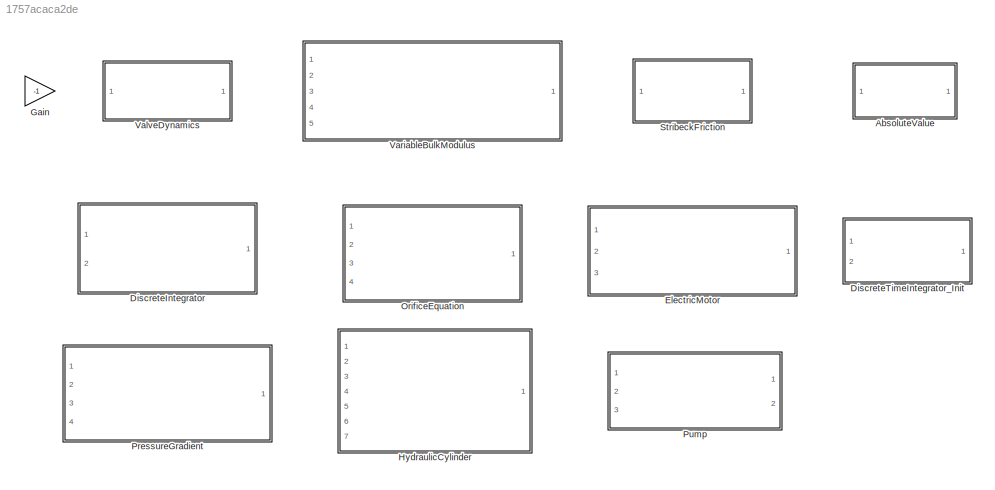
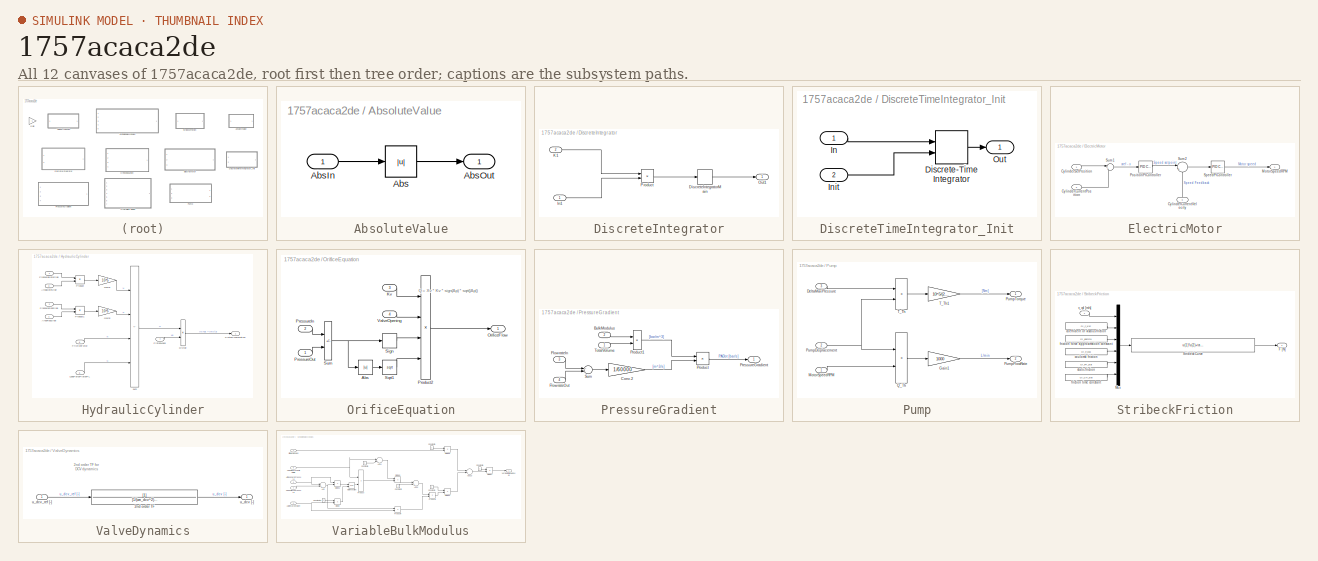
[diagram: thumbnail index - all 12 canvases of the model, root first then tree order]
MODEL slx_1757acaca2de
KIND model
CONFIG AbsTol = auto
CONFIG EnableMultiTasking = off
CONFIG FixedStep = 0.001
CONFIG MaxStep = auto
CONFIG MinStep = auto
CONFIG RelTol = 1e-3
CONFIG SampleTimeConstraint = Unconstrained
CONFIG SolverName = FixedStepDiscrete
CONFIG StartTime = 0.0
CONFIG StopTime = 10.0
BLOCK [SubSystem] AbsoluteValue
  Ports = [1, 1]
  RequestExecContextInheritance = off
  TreatAsAtomicUnit = on
BLOCK [Abs] AbsoluteValue/Abs
  SaturateOnIntegerOverflow = off
BLOCK [Inport] AbsoluteValue/AbsIn
BLOCK [Outport] AbsoluteValue/AbsOut
BLOCK [SubSystem] DiscreteIntegrator
  Ports = [2, 1]
  RequestExecContextInheritance = off
  TreatAsAtomicUnit = on
BLOCK [DiscreteIntegrator] DiscreteIntegrator/DiscreteIntegratorMain
  ICPrevOutput = DiscIntNeverNeededParam
  ICPrevScaledInput = DiscIntNeverNeededParam
  InitialConditionSetting = Auto
  Ports = [1, 1]
  SampleTime = -1
BLOCK [Inport] DiscreteIntegrator/In1
  OutDataTypeStr = single
BLOCK [Inport] DiscreteIntegrator/K1
  OutDataTypeStr = single
  Port = 2
BLOCK [Outport] DiscreteIntegrator/Out1
  OutDataTypeStr = single
BLOCK [Product] DiscreteIntegrator/Product
  Ports = [2, 1]
BLOCK [SubSystem] DiscreteTimeIntegrator_Init
  Ports = [2, 1]
  RequestExecContextInheritance = off
  TreatAsAtomicUnit = on
BLOCK [DiscreteIntegrator] DiscreteTimeIntegrator_Init/Discrete-Time Integrator
  ICPrevOutput = DiscIntNeverNeededParam
  ICPrevScaledInput = DiscIntNeverNeededParam
  InitialConditionSetting = Auto
  InitialConditionSource = external
  LimitOutput = on
  LowerSaturationLimit = -1337
  Ports = [2, 1]
  SampleTime = -1
  UpperSaturationLimit = 1337
BLOCK [Inport] DiscreteTimeIntegrator_Init/In
BLOCK [Inport] DiscreteTimeIntegrator_Init/Init
  Port = 2
BLOCK [Outport] DiscreteTimeIntegrator_Init/Out
BLOCK [SubSystem] ElectricMotor
  Ports = [3, 1]
  RequestExecContextInheritance = off
  TreatAsAtomicUnit = on
BLOCK [Inport] ElectricMotor/CylinderCurrentPosition
  Port = 2
BLOCK [Inport] ElectricMotor/CylinderCurrentVelocity
  NameLocation = right
  Port = 3
BLOCK [Inport] ElectricMotor/CylinderSetPosition
BLOCK [Outport] ElectricMotor/MotorSpeedRPM
BLOCK [Reference] ElectricMotor/PositionPIController  REF=slpidlib/PID Controller
  Ports = [1, 1]
  SourceBlock = slpidlib/PID Controller
  SourceProductBaseCode = SL
  SourceType = PID 1dof
BLOCK [Reference] ElectricMotor/SpeedPIController  REF=slpidlib/PID Controller
  Ports = [1, 1]
  SourceBlock = slpidlib/PID Controller
  SourceProductBaseCode = SL
  SourceType = PID 1dof
BLOCK [Sum] ElectricMotor/Sum1
  Inputs = |+-
  Ports = [2, 1]
BLOCK [Sum] ElectricMotor/Sum2
  Inputs = |+-
  Ports = [2, 1]
BLOCK [Gain] Gain
  Commented = on
  Gain = -1
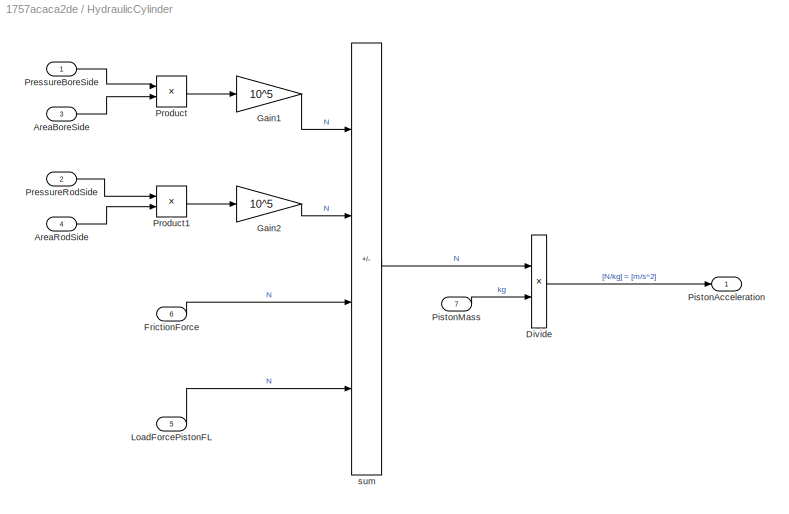
BLOCK [SubSystem] HydraulicCylinder
  Ports = [7, 1]
  RequestExecContextInheritance = off
  TreatAsAtomicUnit = on
BLOCK [Inport] HydraulicCylinder/AreaBoreSide
  Port = 3
BLOCK [Inport] HydraulicCylinder/AreaRodSide
  Port = 4
BLOCK [Product] HydraulicCylinder/Divide 
  Inputs = */
  Ports = [2, 1]
BLOCK [Inport] HydraulicCylinder/FrictionForce
  Port = 6
BLOCK [Gain] HydraulicCylinder/Gain1
  Gain = 10^5
BLOCK [Gain] HydraulicCylinder/Gain2
  Gain = 10^5
BLOCK [Inport] HydraulicCylinder/LoadForcePistonFL
  Port = 5
BLOCK [Outport] HydraulicCylinder/PistonAcceleration
BLOCK [Inport] HydraulicCylinder/PistonMass
  Port = 7
BLOCK [Inport] HydraulicCylinder/PressureBoreSide
BLOCK [Inport] HydraulicCylinder/PressureRodSide
  Port = 2
BLOCK [Product] HydraulicCylinder/Product
  Ports = [2, 1]
BLOCK [Product] HydraulicCylinder/Product1
  Ports = [2, 1]
BLOCK [Sum] HydraulicCylinder/sum
  IconShape = rectangular
  Inputs = +---
  Ports = [4, 1]
BLOCK [SubSystem] OrificeEquation
  Ports = [4, 1]
  RequestExecContextInheritance = off
  TreatAsAtomicUnit = on
BLOCK [Abs] OrificeEquation/Abs
  SaturateOnIntegerOverflow = off
BLOCK [Inport] OrificeEquation/Kv
  Port = 3
BLOCK [Outport] OrificeEquation/OrificeFlow
BLOCK [Inport] OrificeEquation/PressureIn
  Port = 2
BLOCK [Inport] OrificeEquation/PressureOut
BLOCK [Product] OrificeEquation/Product2
  Inputs = 4
  Ports = [4, 1]
BLOCK [Signum] OrificeEquation/Sign
BLOCK [Sqrt] OrificeEquation/Sqrt1
BLOCK [Sum] OrificeEquation/Sum
  IconShape = rectangular
  Inputs = +|-
  Ports = [2, 1]
BLOCK [Inport] OrificeEquation/ValveOpening
  Port = 4
BLOCK [SubSystem] PressureGradient
  Ports = [4, 1]
  RequestExecContextInheritance = off
  TreatAsAtomicUnit = on
BLOCK [Inport] PressureGradient/BulkModulus
  NameLocation = left
  Port = 2
BLOCK [Gain] PressureGradient/Conv.2
  Gain = 1/60000
  NameLocation = top
BLOCK [Inport] PressureGradient/FlowrateIn
  NameLocation = left
  Port = 3
BLOCK [Inport] PressureGradient/FlowrateOut
  NameLocation = left
  Port = 4
BLOCK [Outport] PressureGradient/PressureGradient
BLOCK [Product] PressureGradient/Product
  Ports = [2, 1]
BLOCK [Product] PressureGradient/Product1
  Inputs = */
  Ports = [2, 1]
BLOCK [Sum] PressureGradient/Sum
  Inputs = +-
  Ports = [2, 1]
BLOCK [Inport] PressureGradient/TotalVolume
  NameLocation = left
BLOCK [SubSystem] Pump
  Ports = [3, 2]
  RequestExecContextInheritance = off
  TreatAsAtomicUnit = on
BLOCK [Inport] Pump/DeltaMaxPressure
  Port = 3
BLOCK [Gain] Pump/Gain1
  Gain = 1000
BLOCK [Inport] Pump/MotorSpeedRPM
BLOCK [Inport] Pump/PumpDisplacement
  Port = 2
BLOCK [Outport] Pump/PumpFlowRate
  Port = 2
  VectorParamsAs1DForOutWhenUnconnected = off
BLOCK [Outport] Pump/PumpTorque
  VectorParamsAs1DForOutWhenUnconnected = off
BLOCK [Product] Pump/Q_Th
  Ports = [2, 1]
  RndMeth = Zero
BLOCK [Product] Pump/T_Th
  Ports = [2, 1]
  RndMeth = Zero
BLOCK [Gain] Pump/T_Th1
  Gain = 10^5/(2*pi)
BLOCK [SubSystem] StribeckFriction
  Ports = [1, 1]
  RequestExecContextInheritance = off
  TreatAsAtomicUnit = on
BLOCK [Outport] StribeckFriction/F [N]
  VectorParamsAs1DForOutWhenUnconnected = off
BLOCK [Mux] StribeckFriction/Mux
  DisplayOption = bar
  Inputs = 6
  Ports = [6, 1]
BLOCK [Fcn] StribeckFriction/Stribeck Curve
  Expr = u(1)*u(2)+tanh(u(1)*u(3))*(u(4)+u(5)*exp(-(u(1)*tanh(u(1)*u(3)))/u(6)))
BLOCK [Constant] StribeckFriction/coefficient of viscous friction 
  Value = cyl_c_visc
BLOCK [Constant] StribeckFriction/coulomb friction
  Value = cyl_F_coul
BLOCK [Constant] StribeckFriction/friction force approximation constant
  Value = cyl_gamma
BLOCK [Constant] StribeckFriction/friction time constant
  Value = cyl_CH_stat
BLOCK [Constant] StribeckFriction/static friction
  Value = cyl_FH_stat
BLOCK [Inport] StribeckFriction/v_cyl [m//s]
BLOCK [SubSystem] ValveDynamics
  Ports = [1, 1]
  RequestExecContextInheritance = off
  TreatAsAtomicUnit = on
BLOCK [TransferFcn] ValveDynamics/2nd order TF
  Denominator = [1/(wn_dcv^2) 2*dr_dcv/wn_dcv  1]
BLOCK [Outport] ValveDynamics/u_dcv [-]
  VectorParamsAs1DForOutWhenUnconnected = off
BLOCK [Inport] ValveDynamics/u_dcv_ref [-]
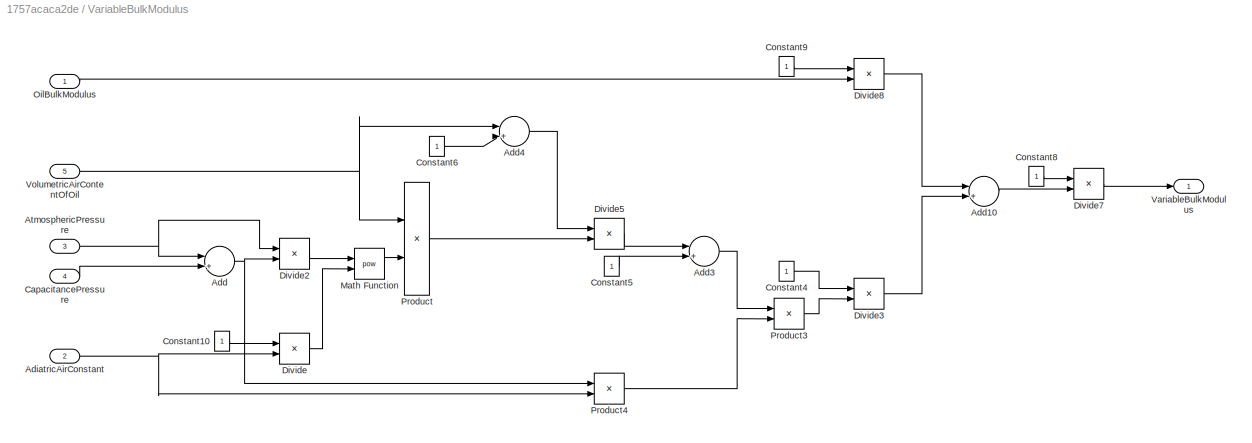
BLOCK [SubSystem] VariableBulkModulus
  Ports = [5, 1]
  RequestExecContextInheritance = off
  TreatAsAtomicUnit = on
BLOCK [Sum] VariableBulkModulus/Add
  Inputs = |++|
  Ports = [2, 1]
BLOCK [Sum] VariableBulkModulus/Add10
  Inputs = |+-|
  Ports = [2, 1]
BLOCK [Sum] VariableBulkModulus/Add3
  Inputs = |+-|
  Ports = [2, 1]
BLOCK [Sum] VariableBulkModulus/Add4
  Inputs = |+-|
  Ports = [2, 1]
BLOCK [Inport] VariableBulkModulus/AdiatricAirConstant
  NameLocation = left
  Port = 2
BLOCK [Inport] VariableBulkModulus/AtmosphericPressure
  NameLocation = left
  Port = 3
BLOCK [Inport] VariableBulkModulus/CapacitancePressure
  NameLocation = left
  Port = 4
BLOCK [Constant] VariableBulkModulus/Constant10
BLOCK [Constant] VariableBulkModulus/Constant4
BLOCK [Constant] VariableBulkModulus/Constant5
BLOCK [Constant] VariableBulkModulus/Constant6
BLOCK [Constant] VariableBulkModulus/Constant8
BLOCK [Constant] VariableBulkModulus/Constant9
BLOCK [Product] VariableBulkModulus/Divide
  Inputs = */
  Ports = [2, 1]
BLOCK [Product] VariableBulkModulus/Divide2
  Inputs = */
  Ports = [2, 1]
BLOCK [Product] VariableBulkModulus/Divide3
  Inputs = */
  Ports = [2, 1]
BLOCK [Product] VariableBulkModulus/Divide5
  Inputs = */
  Ports = [2, 1]
BLOCK [Product] VariableBulkModulus/Divide7
  Inputs = */
  Ports = [2, 1]
BLOCK [Product] VariableBulkModulus/Divide8
  Inputs = */
  Ports = [2, 1]
BLOCK [Math] VariableBulkModulus/Math Function
  Operator = pow
  Ports = [2, 1]
BLOCK [Inport] VariableBulkModulus/OilBulkModulus
  NameLocation = left
BLOCK [Product] VariableBulkModulus/Product
  Ports = [2, 1]
BLOCK [Product] VariableBulkModulus/Product3
  Ports = [2, 1]
BLOCK [Product] VariableBulkModulus/Product4
  Ports = [2, 1]
BLOCK [Outport] VariableBulkModulus/VariableBulkModulus
BLOCK [Inport] VariableBulkModulus/VolumetricAirContentOfOil
  NameLocation = left
  Port = 5
ANNOTATION OrificeEquation: Q = Xv * Kv * sign(Δp) * sqrt(|Δp|)
ANNOTATION ValveDynamics: 2nd order TF for DCV dynamics
LINE AbsoluteValue/Abs:1 -> AbsoluteValue/AbsOut:1
LINE AbsoluteValue/AbsIn:1 -> AbsoluteValue/Abs:1
LINE DiscreteIntegrator/DiscreteIntegratorMain:1 -> DiscreteIntegrator/Out1:1
LINE DiscreteIntegrator/In1:1 -> DiscreteIntegrator/Product:2
LINE DiscreteIntegrator/K1:1 -> DiscreteIntegrator/Product:1
LINE DiscreteIntegrator/Product:1 -> DiscreteIntegrator/DiscreteIntegratorMain:1
LINE DiscreteTimeIntegrator_Init/Discrete-Time Integrator:1 -> DiscreteTimeIntegrator_Init/Out:1
LINE DiscreteTimeIntegrator_Init/In:1 -> DiscreteTimeIntegrator_Init/Discrete-Time Integrator:1
LINE DiscreteTimeIntegrator_Init/Init:1 -> DiscreteTimeIntegrator_Init/Discrete-Time Integrator:2
LINE ElectricMotor/CylinderCurrentPosition:1 -> ElectricMotor/Sum1:2
LINE ElectricMotor/CylinderCurrentVelocity:1 -> ElectricMotor/Sum2:2
LINE ElectricMotor/CylinderSetPosition:1 -> ElectricMotor/Sum1:1
LINE ElectricMotor/PositionPIController:1 -> ElectricMotor/Sum2:1
LINE ElectricMotor/SpeedPIController:1 -> ElectricMotor/MotorSpeedRPM:1
LINE ElectricMotor/Sum1:1 -> ElectricMotor/PositionPIController:1
LINE ElectricMotor/Sum2:1 -> ElectricMotor/SpeedPIController:1
LINE HydraulicCylinder/AreaBoreSide:1 -> HydraulicCylinder/Product:2
LINE HydraulicCylinder/AreaRodSide:1 -> HydraulicCylinder/Product1:2
LINE HydraulicCylinder/Divide :1 -> HydraulicCylinder/PistonAcceleration:1
LINE HydraulicCylinder/FrictionForce:1 -> HydraulicCylinder/sum:3
LINE HydraulicCylinder/Gain1:1 -> HydraulicCylinder/sum:1
LINE HydraulicCylinder/Gain2:1 -> HydraulicCylinder/sum:2
LINE HydraulicCylinder/LoadForcePistonFL:1 -> HydraulicCylinder/sum:4
LINE HydraulicCylinder/PistonMass:1 -> HydraulicCylinder/Divide :2
LINE HydraulicCylinder/PressureBoreSide:1 -> HydraulicCylinder/Product:1
LINE HydraulicCylinder/PressureRodSide:1 -> HydraulicCylinder/Product1:1
LINE HydraulicCylinder/Product1:1 -> HydraulicCylinder/Gain2:1
LINE HydraulicCylinder/Product:1 -> HydraulicCylinder/Gain1:1
LINE HydraulicCylinder/sum:1 -> HydraulicCylinder/Divide :1
LINE OrificeEquation/Abs:1 -> OrificeEquation/Sqrt1:1
LINE OrificeEquation/Kv:1 -> OrificeEquation/Product2:1
LINE OrificeEquation/PressureIn:1 -> OrificeEquation/Sum:1
LINE OrificeEquation/PressureOut:1 -> OrificeEquation/Sum:2
LINE OrificeEquation/Product2:1 -> OrificeEquation/OrificeFlow:1
LINE OrificeEquation/Sign:1 -> OrificeEquation/Product2:3
LINE OrificeEquation/Sqrt1:1 -> OrificeEquation/Product2:4
NET OrificeEquation/Sum:1 -> OrificeEquation/Abs:1, OrificeEquation/Sign:1
LINE OrificeEquation/ValveOpening:1 -> OrificeEquation/Product2:2
LINE PressureGradient/BulkModulus:1 -> PressureGradient/Product1:1
LINE PressureGradient/Conv.2:1 -> PressureGradient/Product:2
LINE PressureGradient/FlowrateIn:1 -> PressureGradient/Sum:1
LINE PressureGradient/FlowrateOut:1 -> PressureGradient/Sum:2
LINE PressureGradient/Product1:1 -> PressureGradient/Product:1
LINE PressureGradient/Product:1 -> PressureGradient/PressureGradient:1
LINE PressureGradient/Sum:1 -> PressureGradient/Conv.2:1
LINE PressureGradient/TotalVolume:1 -> PressureGradient/Product1:2
LINE Pump/DeltaMaxPressure:1 -> Pump/T_Th:1
LINE Pump/Gain1:1 -> Pump/PumpFlowRate:1
LINE Pump/MotorSpeedRPM:1 -> Pump/Q_Th:2
NET Pump/PumpDisplacement:1 -> Pump/Q_Th:1, Pump/T_Th:2
LINE Pump/Q_Th:1 -> Pump/Gain1:1
LINE Pump/T_Th1:1 -> Pump/PumpTorque:1
LINE Pump/T_Th:1 -> Pump/T_Th1:1
LINE StribeckFriction/Mux:1 -> StribeckFriction/Stribeck Curve:1
LINE StribeckFriction/Stribeck Curve:1 -> StribeckFriction/F [N]:1
LINE StribeckFriction/coefficient of viscous friction :1 -> StribeckFriction/Mux:2
LINE StribeckFriction/coulomb friction:1 -> StribeckFriction/Mux:4
LINE StribeckFriction/friction force approximation constant:1 -> StribeckFriction/Mux:3
LINE StribeckFriction/friction time constant:1 -> StribeckFriction/Mux:6
LINE StribeckFriction/static friction:1 -> StribeckFriction/Mux:5
LINE StribeckFriction/v_cyl [m//s]:1 -> StribeckFriction/Mux:1
LINE ValveDynamics/2nd order TF:1 -> ValveDynamics/u_dcv [-]:1
LINE ValveDynamics/u_dcv_ref [-]:1 -> ValveDynamics/2nd order TF:1
LINE VariableBulkModulus/Add10:1 -> VariableBulkModulus/Divide7:2
LINE VariableBulkModulus/Add3:1 -> VariableBulkModulus/Product3:1
LINE VariableBulkModulus/Add4:1 -> VariableBulkModulus/Divide5:1
NET VariableBulkModulus/Add:1 -> VariableBulkModulus/Divide2:2, VariableBulkModulus/Product4:1
NET VariableBulkModulus/AdiatricAirConstant:1 -> VariableBulkModulus/Divide:2, VariableBulkModulus/Product4:2
NET VariableBulkModulus/AtmosphericPressure:1 -> VariableBulkModulus/Add:1, VariableBulkModulus/Divide2:1
LINE VariableBulkModulus/CapacitancePressure:1 -> VariableBulkModulus/Add:2
LINE VariableBulkModulus/Constant10:1 -> VariableBulkModulus/Divide:1
LINE VariableBulkModulus/Constant4:1 -> VariableBulkModulus/Divide3:1
LINE VariableBulkModulus/Constant5:1 -> VariableBulkModulus/Add3:2
LINE VariableBulkModulus/Constant6:1 -> VariableBulkModulus/Add4:2
LINE VariableBulkModulus/Constant8:1 -> VariableBulkModulus/Divide7:1
LINE VariableBulkModulus/Constant9:1 -> VariableBulkModulus/Divide8:1
LINE VariableBulkModulus/Divide2:1 -> VariableBulkModulus/Math Function:1
LINE VariableBulkModulus/Divide3:1 -> VariableBulkModulus/Add10:2
LINE VariableBulkModulus/Divide5:1 -> VariableBulkModulus/Add3:1
LINE VariableBulkModulus/Divide7:1 -> VariableBulkModulus/VariableBulkModulus:1
LINE VariableBulkModulus/Divide8:1 -> VariableBulkModulus/Add10:1
LINE VariableBulkModulus/Divide:1 -> VariableBulkModulus/Math Function:2
LINE VariableBulkModulus/Math Function:1 -> VariableBulkModulus/Product:2
LINE VariableBulkModulus/OilBulkModulus:1 -> VariableBulkModulus/Divide8:2
LINE VariableBulkModulus/Product3:1 -> VariableBulkModulus/Divide3:2
LINE VariableBulkModulus/Product4:1 -> VariableBulkModulus/Product3:2
LINE VariableBulkModulus/Product:1 -> VariableBulkModulus/Divide5:2
NET VariableBulkModulus/VolumetricAirContentOfOil:1 -> VariableBulkModulus/Add4:1, VariableBulkModulus/Product:1
note: NET lines group one-source signal fan-out (src -> all destinations, sorted); 1:1 wires keep LINE
